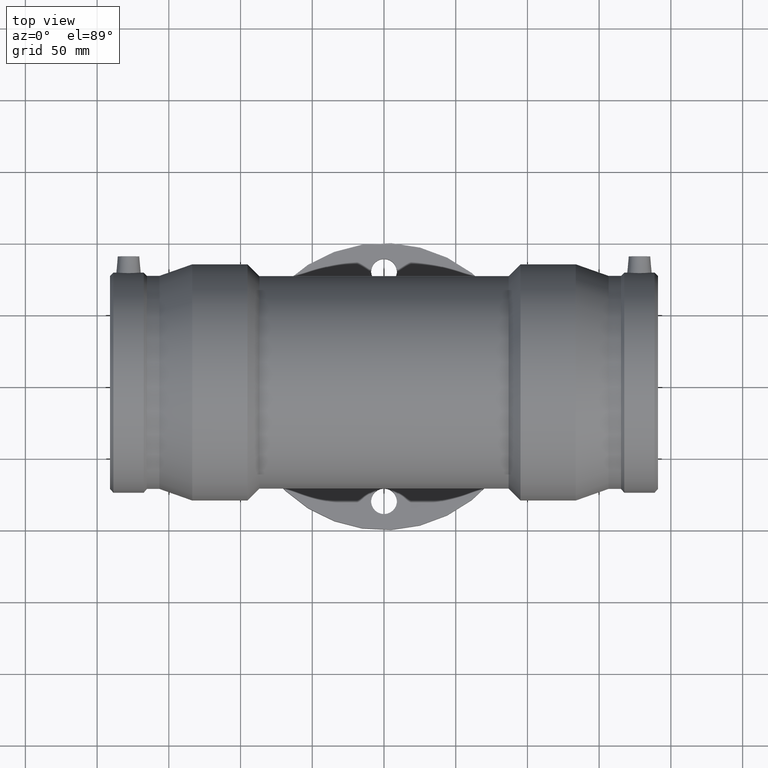
[diagram: clean part render]
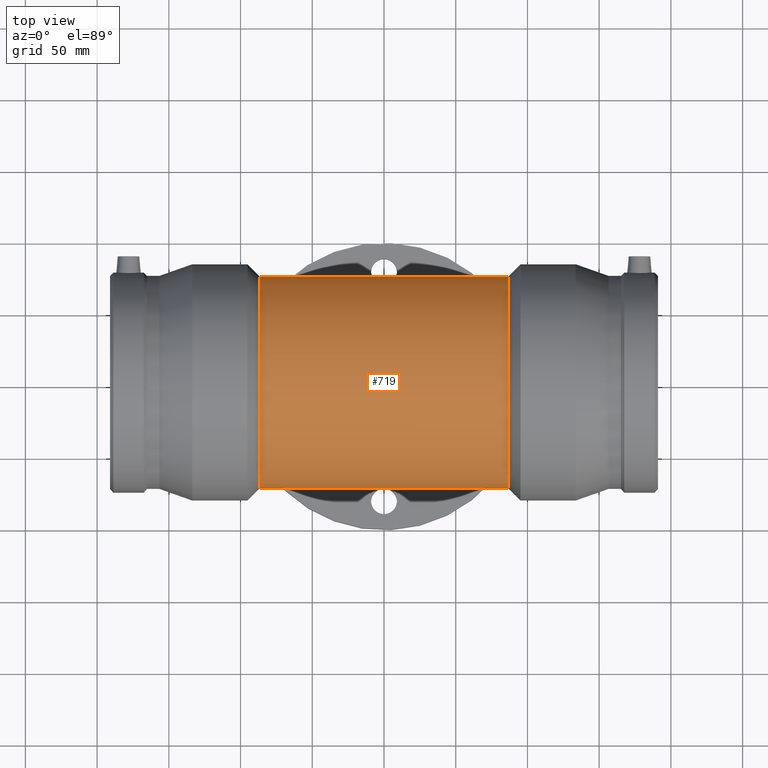
[diagram: same view with one face highlighted and labeled with its STEP entity id]
A machine part, top view. The second image highlights one B-rep face of the part: STEP entity #719.
In plain terms, the highlighted cylindrical surface (bore or boss wall) has radius 74.25 mm, axis along (1, 0, 0).
Its self-contained STEP definition (entity closure, byte-faithful):
#79=FACE_BOUND('',#331,.T.);
#80=FACE_BOUND('',#332,.T.);
#147=CIRCLE('',#807,74.25);
#148=CIRCLE('',#808,74.25);
#199=CYLINDRICAL_SURFACE('',#806,74.25);
#235=FACE_OUTER_BOUND('',#330,.T.);
#330=EDGE_LOOP('',(#616));
#331=EDGE_LOOP('',(#617));
#332=EDGE_LOOP('',(#618));
#416=B_SPLINE_CURVE_WITH_KNOTS('',3,(#1457,#1458,#1459,#1460,#1461,#1462,
#1463,#1464,#1465,#1466,#1467,#1468,#1469,#1470,#1471,#1472,#1473,#1474,
#1475,#1476,#1477,#1478,#1479,#1480,#1481,#1482,#1483,#1484,#1485,#1486,
#1487,#1488,#1489,#1490,#1491,#1492,#1493,#1494,#1495,#1496,#1497,#1498,
#1499,#1500,#1501,#1502,#1503,#1504,#1505,#1506,#1507,#1508,#1509,#1510,
#1511,#1512,#1513,#1514,#1515,#1516,#1517,#1518,#1519,#1520,#1521,#1522),
 .UNSPECIFIED.,.T.,.F.,(4,2,2,2,2,2,2,2,2,2,2,2,2,2,2,2,2,2,2,2,2,2,2,2,
2,2,2,2,2,2,2,2,4),(0.,0.987703244160759,1.97540648832152,2.96310973248228,
3.95081297664303,4.92706064322171,5.90330830980039,6.87955597637907,7.85580364295775,
8.83205130953642,9.8082989761151,10.7845466426938,11.7607943092725,12.7484975534332,
13.736200797594,14.7239040417547,15.7116072859155,16.6993105300763,17.687013774237,
18.6747170183978,19.6624202625585,20.6386679291372,21.6149155957159,22.5911632622946,
23.5674109288732,24.5436585954519,25.5199062620306,26.4961539286093,27.472401595188,
28.4601048393487,29.4478080835095,30.4355113276702,31.423214571831),
 .UNSPECIFIED.);
#439=VERTEX_POINT('',#1456);
#448=VERTEX_POINT('',#1549);
#449=VERTEX_POINT('',#1551);
#509=EDGE_CURVE('',#439,#439,#416,.T.);
#518=EDGE_CURVE('',#448,#448,#147,.T.);
#519=EDGE_CURVE('',#449,#449,#148,.T.);
#616=ORIENTED_EDGE('',*,*,#518,.F.);
#617=ORIENTED_EDGE('',*,*,#519,.T.);
#618=ORIENTED_EDGE('',*,*,#509,.T.);
#719=ADVANCED_FACE('',(#235,#79,#80),#199,.T.);
#806=AXIS2_PLACEMENT_3D('',#1548,#977,#978);
#807=AXIS2_PLACEMENT_3D('',#1550,#979,#980);
#808=AXIS2_PLACEMENT_3D('',#1552,#981,#982);
#977=DIRECTION('center_axis',(1.,0.,0.));
#978=DIRECTION('ref_axis',(0.,1.,0.));
#979=DIRECTION('center_axis',(1.,0.,0.));
#980=DIRECTION('ref_axis',(0.,0.,-1.));
#981=DIRECTION('center_axis',(1.,0.,0.));
#982=DIRECTION('ref_axis',(0.,0.,-1.));
#1456=CARTESIAN_POINT('',(-6.66133814775094E-15,50.,-54.891369995656));
#1457=CARTESIAN_POINT('Ctrl Pts',(-6.66133814775094E-15,50.,-54.891369995656));
#1458=CARTESIAN_POINT('Ctrl Pts',(-3.29234414720254,50.,-54.891369995656));
#1459=CARTESIAN_POINT('Ctrl Pts',(-6.63364631010079,49.6704615548511,-55.1967779022133));
#1460=CARTESIAN_POINT('Ctrl Pts',(-13.1824748145183,48.3464826108105,-56.3600625712673));
#1461=CARTESIAN_POINT('Ctrl Pts',(-16.3908308680601,47.3528454235544,-57.214179341057));
#1462=CARTESIAN_POINT('Ctrl Pts',(-22.48877125631,44.77954051464,-59.2498643006233));
#1463=CARTESIAN_POINT('Ctrl Pts',(-25.3848456126078,43.1976785200677,-60.430022544085));
#1464=CARTESIAN_POINT('Ctrl Pts',(-30.7310495158367,39.5731274077075,-62.8633012251548));
#1465=CARTESIAN_POINT('Ctrl Pts',(-33.181223107926,37.5294550107288,-64.1148598720388));
#1466=CARTESIAN_POINT('Ctrl Pts',(-37.5042391839094,33.2064389347454,-66.4557498761381));
#1467=CARTESIAN_POINT('Ctrl Pts',(-39.5431856412499,30.7698858145642,-67.6359478886354));
#1468=CARTESIAN_POINT('Ctrl Pts',(-43.1760514174201,25.4219981228121,-69.8221263724586));
#1469=CARTESIAN_POINT('Ctrl Pts',(-44.7701857577485,22.5103130541755,-70.8268919500925));
#1470=CARTESIAN_POINT('Ctrl Pts',(-47.3594096890234,16.3759009916063,-72.4913286542176));
#1471=CARTESIAN_POINT('Ctrl Pts',(-48.3566289927406,13.1466107569943,-73.1517840593908));
#1472=CARTESIAN_POINT('Ctrl Pts',(-49.6771960928303,6.58582799475871,-74.0313700748657));
#1473=CARTESIAN_POINT('Ctrl Pts',(-50.,3.25415888859559,-74.25));
#1474=CARTESIAN_POINT('Ctrl Pts',(-50.,-3.25415888859559,-74.25));
#1475=CARTESIAN_POINT('Ctrl Pts',(-49.6771960928303,-6.58582799475871,-74.0313700748657));
#1476=CARTESIAN_POINT('Ctrl Pts',(-48.3566289927406,-13.1466107569943,-73.1517840593908));
#1477=CARTESIAN_POINT('Ctrl Pts',(-47.3594096890234,-16.3759009916063,-72.4913286542176));
#1478=CARTESIAN_POINT('Ctrl Pts',(-44.7701857577485,-22.5103130541755,-70.8268919500925));
#1479=CARTESIAN_POINT('Ctrl Pts',(-43.1760514174201,-25.4219981228121,-69.8221263724586));
#1480=CARTESIAN_POINT('Ctrl Pts',(-39.5431856412499,-30.7698858145642,-67.6359478886354));
#1481=CARTESIAN_POINT('Ctrl Pts',(-37.5042391839094,-33.2064389347454,-66.4557498761381));
#1482=CARTESIAN_POINT('Ctrl Pts',(-33.181223107926,-37.5294550107288,-64.1148598720388));
#1483=CARTESIAN_POINT('Ctrl Pts',(-30.7310495158367,-39.5731274077075,-62.8633012251548));
#1484=CARTESIAN_POINT('Ctrl Pts',(-25.3848456126078,-43.1976785200677,-60.430022544085));
#1485=CARTESIAN_POINT('Ctrl Pts',(-22.48877125631,-44.77954051464,-59.2498643006233));
#1486=CARTESIAN_POINT('Ctrl Pts',(-16.3908308680601,-47.3528454235544,-57.214179341057));
#1487=CARTESIAN_POINT('Ctrl Pts',(-13.1824748145183,-48.3464826108105,-56.3600625712673));
#1488=CARTESIAN_POINT('Ctrl Pts',(-6.63364631010079,-49.6704615548511,-55.1967779022133));
#1489=CARTESIAN_POINT('Ctrl Pts',(-3.29234414720254,-50.,-54.891369995656));
#1490=CARTESIAN_POINT('Ctrl Pts',(3.29234414720252,-50.,-54.891369995656));
#1491=CARTESIAN_POINT('Ctrl Pts',(6.63364631010078,-49.6704615548511,-55.1967779022133));
#1492=CARTESIAN_POINT('Ctrl Pts',(13.1824748145183,-48.3464826108105,-56.3600625712673));
#1493=CARTESIAN_POINT('Ctrl Pts',(16.3908308680601,-47.3528454235544,-57.214179341057));
#1494=CARTESIAN_POINT('Ctrl Pts',(22.48877125631,-44.77954051464,-59.2498643006233));
#1495=CARTESIAN_POINT('Ctrl Pts',(25.3848456126077,-43.1976785200677,-60.430022544085));
#1496=CARTESIAN_POINT('Ctrl Pts',(30.7310495158367,-39.5731274077075,-62.8633012251548));
#1497=CARTESIAN_POINT('Ctrl Pts',(33.181223107926,-37.5294550107288,-64.1148598720388));
#1498=CARTESIAN_POINT('Ctrl Pts',(37.5042391839094,-33.2064389347454,-66.4557498761381));
#1499=CARTESIAN_POINT('Ctrl Pts',(39.5431856412498,-30.7698858145642,-67.6359478886354));
#1500=CARTESIAN_POINT('Ctrl Pts',(43.1760514174201,-25.4219981228121,-69.8221263724586));
#1501=CARTESIAN_POINT('Ctrl Pts',(44.7701857577484,-22.5103130541755,-70.8268919500925));
#1502=CARTESIAN_POINT('Ctrl Pts',(47.3594096890233,-16.3759009916063,-72.4913286542176));
#1503=CARTESIAN_POINT('Ctrl Pts',(48.3566289927406,-13.1466107569943,-73.1517840593908));
#1504=CARTESIAN_POINT('Ctrl Pts',(49.6771960928303,-6.5858279947587,-74.0313700748657));
#1505=CARTESIAN_POINT('Ctrl Pts',(50.,-3.25415888859559,-74.25));
#1506=CARTESIAN_POINT('Ctrl Pts',(50.,3.25415888859558,-74.25));
#1507=CARTESIAN_POINT('Ctrl Pts',(49.6771960928303,6.58582799475868,-74.0313700748657));
#1508=CARTESIAN_POINT('Ctrl Pts',(48.3566289927406,13.1466107569943,-73.1517840593908));
#1509=CARTESIAN_POINT('Ctrl Pts',(47.3594096890234,16.3759009916063,-72.4913286542176));
#1510=CARTESIAN_POINT('Ctrl Pts',(44.7701857577485,22.5103130541755,-70.8268919500925));
#1511=CARTESIAN_POINT('Ctrl Pts',(43.1760514174201,25.4219981228121,-69.8221263724586));
#1512=CARTESIAN_POINT('Ctrl Pts',(39.5431856412498,30.7698858145641,-67.6359478886354));
#1513=CARTESIAN_POINT('Ctrl Pts',(37.5042391839094,33.2064389347454,-66.4557498761381));
#1514=CARTESIAN_POINT('Ctrl Pts',(33.181223107926,37.5294550107288,-64.1148598720388));
#1515=CARTESIAN_POINT('Ctrl Pts',(30.7310495158367,39.5731274077075,-62.8633012251548));
#1516=CARTESIAN_POINT('Ctrl Pts',(25.3848456126078,43.1976785200677,-60.430022544085));
#1517=CARTESIAN_POINT('Ctrl Pts',(22.48877125631,44.77954051464,-59.2498643006233));
#1518=CARTESIAN_POINT('Ctrl Pts',(16.3908308680601,47.3528454235544,-57.214179341057));
#1519=CARTESIAN_POINT('Ctrl Pts',(13.1824748145183,48.3464826108105,-56.3600625712673));
#1520=CARTESIAN_POINT('Ctrl Pts',(6.63364631010078,49.6704615548511,-55.1967779022132));
#1521=CARTESIAN_POINT('Ctrl Pts',(3.29234414720251,50.,-54.891369995656));
#1522=CARTESIAN_POINT('Ctrl Pts',(-2.33146835171283E-14,50.,-54.891369995656));
#1548=CARTESIAN_POINT('Origin',(0.,0.,0.));
#1549=CARTESIAN_POINT('',(86.905,74.25,0.));
#1550=CARTESIAN_POINT('Origin',(86.905,0.,0.));
#1551=CARTESIAN_POINT('',(-86.905,74.25,0.));
#1552=CARTESIAN_POINT('Origin',(-86.905,0.,0.));